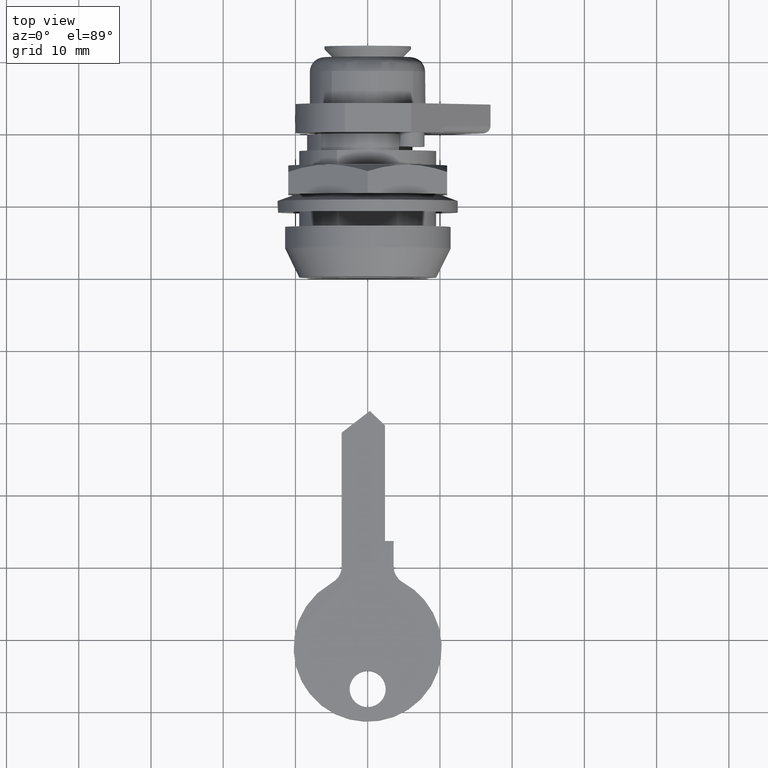
[diagram: clean part render]
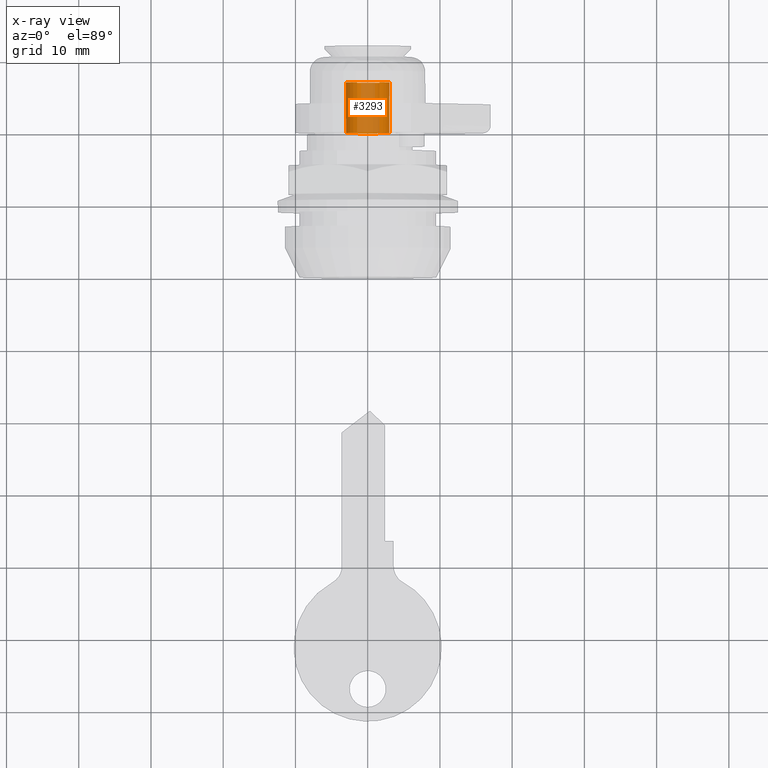
[diagram: x-ray — body ghosted, one internal face saturated and labeled with its STEP entity id]
A machine part, top view, then the same camera in x-ray: the body is ghosted and one INTERNAL B-rep face — a face not visible from any outside direction — is saturated and labeled: STEP entity #3293.
In plain terms, the highlighted face is a freeform B-spline surface patch.
Its self-contained STEP definition (entity closure, byte-faithful):
#3140=CARTESIAN_POINT('',(19.824999999999999,-1.628836111870130,2.519304054827020));
#3141=CARTESIAN_POINT('',(19.824999999999992,-2.257843814853911,2.112624099185535));
#3142=CARTESIAN_POINT('',(19.824999999999999,-2.621872152269055,1.458007687618990));
#3143=CARTESIAN_POINT('',(19.824999999999992,-4.079879839888030,-1.163864464650065));
#3144=CARTESIAN_POINT('',(19.824999999999999,-1.458007687618975,-2.621872152269041));
#3145=CARTESIAN_POINT('',(19.824999999999992,1.163864464650080,-4.079879839888016));
#3146=CARTESIAN_POINT('',(19.824999999999999,2.621872152269055,-1.458007687618961));
#3147=CARTESIAN_POINT('',(19.824999999999992,4.079879839888030,1.163864464650094));
#3148=CARTESIAN_POINT('',(19.824999999999999,1.458007687618975,2.621872152269069));
#3149=CARTESIAN_POINT('',(27.179375000000007,-1.628836111870130,2.519304054827020));
#3150=CARTESIAN_POINT('',(27.179375000000004,-2.257843814853911,2.112624099185535));
#3151=CARTESIAN_POINT('',(27.179375000000000,-2.621872152269055,1.458007687618990));
#3152=CARTESIAN_POINT('',(27.179374999999997,-4.079879839888030,-1.163864464650065));
#3153=CARTESIAN_POINT('',(27.179375000000000,-1.458007687618975,-2.621872152269041));
#3154=CARTESIAN_POINT('',(27.179374999999997,1.163864464650080,-4.079879839888016));
#3155=CARTESIAN_POINT('',(27.179375000000000,2.621872152269055,-1.458007687618961));
#3156=CARTESIAN_POINT('',(27.179374999999997,4.079879839888030,1.163864464650094));
#3157=CARTESIAN_POINT('',(27.179375000000000,1.458007687618975,2.621872152269069));
#3165=(BOUNDED_SURFACE()B_SPLINE_SURFACE(2,1,((#3140,#3149),(#3141,#3150),(#3142,#3151),(#3143,#3152),(#3144,#3153),(#3145,#3154),(#3146,#3155),(#3147,#3156),(#3148,#3157)),.UNSPECIFIED.,.F.,.F.,.U.)B_SPLINE_SURFACE_WITH_KNOTS((3,2,2,2,3),(2,2),(0.0,1.590580079512685,6.561142827989825,11.531705576466971,16.502268324944112),(0.0,7.354375000000010),.UNSPECIFIED.)GEOMETRIC_REPRESENTATION_ITEM()RATIONAL_B_SPLINE_SURFACE(((0.872532871172385,0.872532871172385),(0.906274169979695,0.906274169979695),(1.0,1.0),(0.707106781186548,0.707106781186548),(1.0,1.0),(0.707106781186548,0.707106781186548),(1.0,1.0),(0.707106781186548,0.707106781186548),(1.0,1.0)))REPRESENTATION_ITEM('')SURFACE());
#3166=CARTESIAN_POINT('',(20.0,-2.749545416973505,1.200000000000018));
#3167=VERTEX_POINT('',#3166);
#3168=CARTESIAN_POINT('',(20.0,-1.628836114094865,2.519304053388636));
#3169=VERTEX_POINT('',#3168);
#3170=CARTESIAN_POINT('',(20.0,-2.749545416973503,1.200000000000016));
#3171=CARTESIAN_POINT('',(20.000000000000004,-2.387958641060546,2.028499385458096));
#3172=CARTESIAN_POINT('',(19.999999999999993,-1.628836114094865,2.519304053388636));
#3180=(BOUNDED_CURVE()B_SPLINE_CURVE(2,(#3170,#3171,#3172),.UNSPECIFIED.,.F.,.U.)B_SPLINE_CURVE_WITH_KNOTS((3,3),(0.0,0.252388885499565),.UNSPECIFIED.)CURVE()GEOMETRIC_REPRESENTATION_ITEM()RATIONAL_B_SPLINE_CURVE((1.0,0.917549612278814,0.918337470421456))REPRESENTATION_ITEM(''));
#3181=EDGE_CURVE('',#3167,#3169,#3180,.T.);
#3182=ORIENTED_EDGE('',*,*,#3181,.T.);
#3183=CARTESIAN_POINT('',(27.0,-1.628836132653686,2.519304041389576));
#3184=VERTEX_POINT('',#3183);
#3185=CARTESIAN_POINT('',(20.0,-1.628836114094865,2.519304053388636));
#3186=CARTESIAN_POINT('',(27.0,-1.628836132653686,2.519304041389576));
#3187=QUASI_UNIFORM_CURVE('',1,(#3185,#3186),.UNSPECIFIED.,.F.,.U.);
#3188=EDGE_CURVE('',#3169,#3184,#3187,.T.);
#3189=ORIENTED_EDGE('',*,*,#3188,.T.);
#3190=CARTESIAN_POINT('',(27.0,0.0,-2.999999999999986));
#3191=VERTEX_POINT('',#3190);
#3192=CARTESIAN_POINT('',(27.0,0.0,-2.999999999999986));
#3193=CARTESIAN_POINT('',(27.000000000000011,-3.0,-2.999999999999985));
#3194=CARTESIAN_POINT('',(27.0,-3.0,1.421085E-014));
#3195=CARTESIAN_POINT('',(27.000000000000004,-3.000000000000000,1.632788855195084));
#3196=CARTESIAN_POINT('',(26.999999999999993,-1.628836132653686,2.519304041389577));
#3204=(BOUNDED_CURVE()B_SPLINE_CURVE(2,(#3192,#3193,#3194,#3195,#3196),.UNSPECIFIED.,.F.,.U.)B_SPLINE_CURVE_WITH_KNOTS((3,2,3),(0.0,0.250000000000000,0.407025917092825),.UNSPECIFIED.)CURVE()GEOMETRIC_REPRESENTATION_ITEM()RATIONAL_B_SPLINE_CURVE((1.0,0.707106781186548,1.0,0.816032694822193,0.863166468129512))REPRESENTATION_ITEM(''));
#3205=EDGE_CURVE('',#3191,#3184,#3204,.T.);
#3206=ORIENTED_EDGE('',*,*,#3205,.F.);
#3207=CARTESIAN_POINT('',(27.0,1.458007687628069,2.621872152264013));
#3208=VERTEX_POINT('',#3207);
#3209=CARTESIAN_POINT('',(27.000000000000004,1.458007687628069,2.621872152264013));
#3210=CARTESIAN_POINT('',(27.000000000000004,2.999999999999999,1.764379294048690));
#3211=CARTESIAN_POINT('',(27.0,3.0,1.421085E-014));
#3212=CARTESIAN_POINT('',(27.000000000000011,3.0,-2.999999999999985));
#3213=CARTESIAN_POINT('',(27.0,0.0,-2.999999999999986));
#3221=(BOUNDED_CURVE()B_SPLINE_CURVE(2,(#3209,#3210,#3211,#3212,#3213),.UNSPECIFIED.,.F.,.U.)B_SPLINE_CURVE_WITH_KNOTS((3,2,3),(0.582797980699880,0.750000000000000,1.0),.UNSPECIFIED.)CURVE()GEOMETRIC_REPRESENTATION_ITEM()RATIONAL_B_SPLINE_CURVE((0.870246058704121,0.804110649500315,1.0,0.707106781186548,1.0))REPRESENTATION_ITEM(''));
#3222=EDGE_CURVE('',#3208,#3191,#3221,.T.);
#3223=ORIENTED_EDGE('',*,*,#3222,.F.);
#3224=CARTESIAN_POINT('',(20.0,1.458004989917523,2.621873652441351));
#3225=VERTEX_POINT('',#3224);
#3226=CARTESIAN_POINT('',(20.0,1.458004989917523,2.621873652441351));
#3227=CARTESIAN_POINT('',(27.0,1.458007687628069,2.621872152264013));
#3228=QUASI_UNIFORM_CURVE('',1,(#3226,#3227),.UNSPECIFIED.,.F.,.U.);
#3229=EDGE_CURVE('',#3225,#3208,#3228,.T.);
#3230=ORIENTED_EDGE('',*,*,#3229,.F.);
#3231=CARTESIAN_POINT('',(20.0,2.749545416973505,1.200000000000016));
#3232=VERTEX_POINT('',#3231);
#3233=CARTESIAN_POINT('',(20.0,1.458004989917524,2.621873652441350));
#3234=CARTESIAN_POINT('',(19.999999999999996,2.344024812838493,2.129164432156468));
#3235=CARTESIAN_POINT('',(20.0,2.749545416973503,1.200000000000017));
#3243=(BOUNDED_CURVE()B_SPLINE_CURVE(2,(#3233,#3234,#3235),.UNSPECIFIED.,.F.,.U.)B_SPLINE_CURVE_WITH_KNOTS((3,3),(0.719752648737206,1.0),.UNSPECIFIED.)CURVE()GEOMETRIC_REPRESENTATION_ITEM()RATIONAL_B_SPLINE_CURVE((0.919525534151945,0.908448810161679,1.0))REPRESENTATION_ITEM(''));
#3244=EDGE_CURVE('',#3225,#3232,#3243,.T.);
#3245=ORIENTED_EDGE('',*,*,#3244,.T.);
#3246=CARTESIAN_POINT('',(20.0,2.749545416973500,-1.200000000000000));
#3247=VERTEX_POINT('',#3246);
#3248=CARTESIAN_POINT('',(20.0,2.749545416973503,1.200000000000017));
#3249=CARTESIAN_POINT('',(19.999999999999996,3.273268353539890,7.271961E-015));
#3250=CARTESIAN_POINT('',(20.0,2.749545416973498,-1.200000000000000));
#3258=(BOUNDED_CURVE()B_SPLINE_CURVE(2,(#3248,#3249,#3250),.UNSPECIFIED.,.F.,.U.)CURVE()GEOMETRIC_REPRESENTATION_ITEM()QUASI_UNIFORM_CURVE()RATIONAL_B_SPLINE_CURVE((1.0,0.916515138991167,1.0))REPRESENTATION_ITEM(''));
#3259=EDGE_CURVE('',#3232,#3247,#3258,.T.);
#3260=ORIENTED_EDGE('',*,*,#3259,.T.);
#3261=CARTESIAN_POINT('',(20.0,-2.749545416973500,-1.200000000000000));
#3262=VERTEX_POINT('',#3261);
#3263=CARTESIAN_POINT('',(20.0,2.749545416973498,-1.200000000000000));
#3264=CARTESIAN_POINT('',(19.999999999999996,1.963961012123921,-2.999999999999985));
#3265=CARTESIAN_POINT('',(20.0,0.0,-2.999999999999986));
#3266=CARTESIAN_POINT('',(19.999999999999996,-1.963961012123920,-2.999999999999985));
#3267=CARTESIAN_POINT('',(20.0,-2.749545416973497,-1.200000000000001));
#3275=(BOUNDED_CURVE()B_SPLINE_CURVE(2,(#3263,#3264,#3265,#3266,#3267),.UNSPECIFIED.,.F.,.U.)B_SPLINE_CURVE_WITH_KNOTS((3,2,3),(0.0,0.500000000000000,1.0),.UNSPECIFIED.)CURVE()GEOMETRIC_REPRESENTATION_ITEM()RATIONAL_B_SPLINE_CURVE((1.0,0.836660026534077,1.0,0.836660026534077,1.0))REPRESENTATION_ITEM(''));
#3276=EDGE_CURVE('',#3247,#3262,#3275,.T.);
#3277=ORIENTED_EDGE('',*,*,#3276,.T.);
#3278=CARTESIAN_POINT('',(20.0,-2.749545416973498,-1.200000000000000));
#3279=CARTESIAN_POINT('',(19.999999999999996,-3.273268353539890,6.838280E-015));
#3280=CARTESIAN_POINT('',(20.0,-2.749545416973503,1.200000000000016));
#3288=(BOUNDED_CURVE()B_SPLINE_CURVE(2,(#3278,#3279,#3280),.UNSPECIFIED.,.F.,.U.)CURVE()GEOMETRIC_REPRESENTATION_ITEM()QUASI_UNIFORM_CURVE()RATIONAL_B_SPLINE_CURVE((1.0,0.916515138991167,1.0))REPRESENTATION_ITEM(''));
#3289=EDGE_CURVE('',#3262,#3167,#3288,.T.);
#3290=ORIENTED_EDGE('',*,*,#3289,.T.);
#3291=EDGE_LOOP('',(#3182,#3189,#3206,#3223,#3230,#3245,#3260,#3277,#3290));
#3292=FACE_OUTER_BOUND('',#3291,.T.);
#3293=ADVANCED_FACE('',(#3292),#3165,.F.);